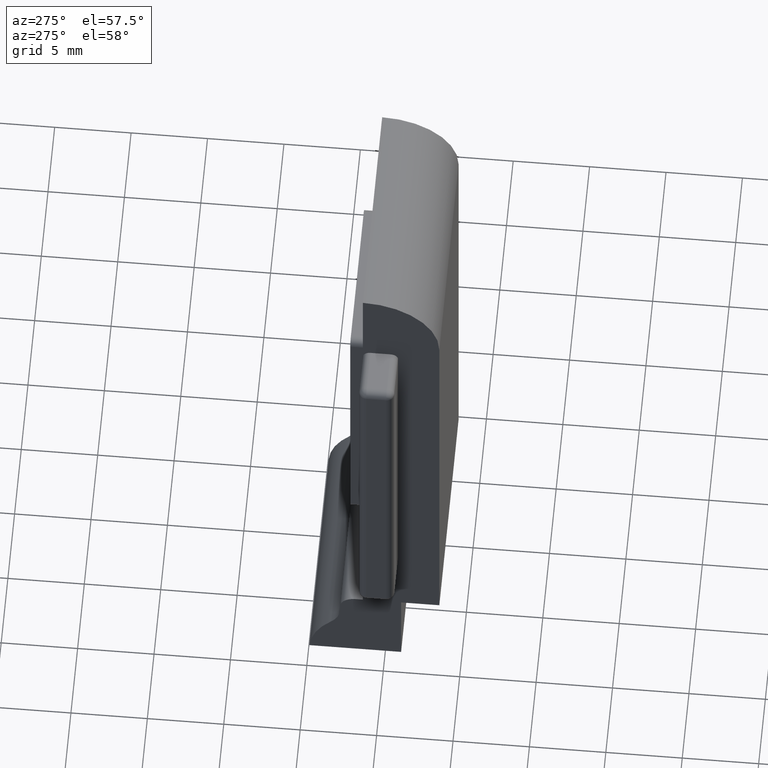
[diagram: clean part render]
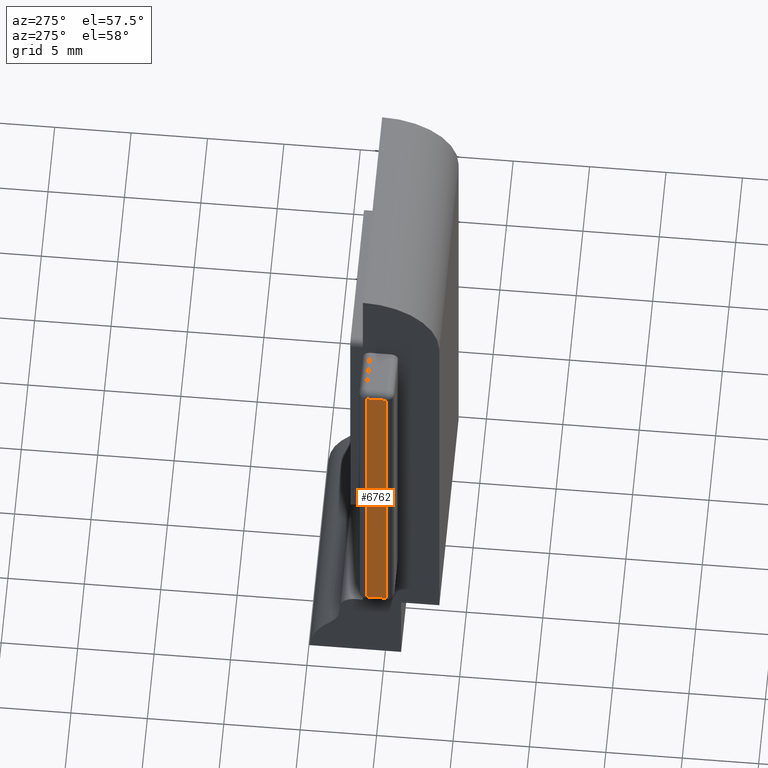
[diagram: same view with one face highlighted and labeled with its STEP entity id]
A machine part, auxiliary view. The second image highlights one B-rep face of the part: STEP entity #6762.
In plain terms, the highlighted planar face has unit normal (-1, 0, 0).
Its self-contained STEP definition (entity closure, byte-faithful):
#16 = VECTOR ( 'NONE', #9441, 1000.000000000000000 ) ;
#294 = ORIENTED_EDGE ( 'NONE', *, *, #354, .T. ) ;
#354 = EDGE_CURVE ( 'NONE', #1248, #3906, #3394, .T. ) ;
#440 = CARTESIAN_POINT ( 'NONE',  ( -3.249999999999999600, -2.300000000000002900, 5.499999999999998200 ) ) ;
#514 = LINE ( 'NONE', #9536, #9005 ) ;
#942 = CARTESIAN_POINT ( 'NONE',  ( -3.249999999999999600, -0.5000000000000006700, 4.999999999999997300 ) ) ;
#964 = CARTESIAN_POINT ( 'NONE',  ( -3.249999999999999600, -0.5000000000000007800, 5.499999999999998200 ) ) ;
#1248 = VERTEX_POINT ( 'NONE', #4716 ) ;
#1299 = DIRECTION ( 'NONE',  ( -0.0000000000000000000, 0.0000000000000000000, 1.000000000000000000 ) ) ;
#1487 = CARTESIAN_POINT ( 'NONE',  ( -3.249999999999999600, 0.0000000000000000000, 0.0000000000000000000 ) ) ;
#1855 = EDGE_CURVE ( 'NONE', #3906, #5984, #9846, .T. ) ;
#2245 = EDGE_CURVE ( 'NONE', #4218, #1248, #514, .T. ) ;
#2770 = EDGE_LOOP ( 'NONE', ( #294, #6614, #7265, #4625 ) ) ;
#3394 = LINE ( 'NONE', #942, #16 ) ;
#3820 = DIRECTION ( 'NONE',  ( -1.000000000000000000, 0.0000000000000000000, -0.0000000000000000000 ) ) ;
#3906 = VERTEX_POINT ( 'NONE', #964 ) ;
#4218 = VERTEX_POINT ( 'NONE', #5952 ) ;
#4272 = DIRECTION ( 'NONE',  ( 0.0000000000000000000, -1.000000000000000000, 0.0000000000000000000 ) ) ;
#4482 = VECTOR ( 'NONE', #4272, 1000.000000000000000 ) ;
#4625 = ORIENTED_EDGE ( 'NONE', *, *, #2245, .T. ) ;
#4716 = CARTESIAN_POINT ( 'NONE',  ( -3.249999999999999600, -0.5000000000000036600, 29.50000000000000000 ) ) ;
#5436 = CARTESIAN_POINT ( 'NONE',  ( -3.249999999999999600, -1.800000000000002900, 5.499999999999998200 ) ) ;
#5725 = DIRECTION ( 'NONE',  ( 0.0000000000000000000, 1.000000000000000000, 0.0000000000000000000 ) ) ;
#5869 = AXIS2_PLACEMENT_3D ( 'NONE', #1487, #3820, #1299 ) ;
#5952 = CARTESIAN_POINT ( 'NONE',  ( -3.249999999999999600, -1.800000000000002900, 29.50000000000000000 ) ) ;
#5984 = VERTEX_POINT ( 'NONE', #5436 ) ;
#6084 = PLANE ( 'NONE',  #5869 ) ;
#6286 = LINE ( 'NONE', #6669, #7471 ) ;
#6600 = DIRECTION ( 'NONE',  ( 0.0000000000000000000, 0.0000000000000000000, 1.000000000000000000 ) ) ;
#6614 = ORIENTED_EDGE ( 'NONE', *, *, #1855, .T. ) ;
#6669 = CARTESIAN_POINT ( 'NONE',  ( -3.249999999999999600, -1.800000000000002900, 30.00000000000000000 ) ) ;
#6762 = ADVANCED_FACE ( 'NONE', ( #8690 ), #6084, .T. ) ;
#7265 = ORIENTED_EDGE ( 'NONE', *, *, #9106, .T. ) ;
#7471 = VECTOR ( 'NONE', #6600, 1000.000000000000000 ) ;
#8690 = FACE_OUTER_BOUND ( 'NONE', #2770, .T. ) ;
#9005 = VECTOR ( 'NONE', #5725, 1000.000000000000000 ) ;
#9106 = EDGE_CURVE ( 'NONE', #5984, #4218, #6286, .T. ) ;
#9441 = DIRECTION ( 'NONE',  ( 0.0000000000000000000, 1.224646799147353000E-016, -1.000000000000000000 ) ) ;
#9536 = CARTESIAN_POINT ( 'NONE',  ( -3.249999999999999600, -4.336808689942017700E-016, 29.50000000000000000 ) ) ;
#9846 = LINE ( 'NONE', #440, #4482 ) ;